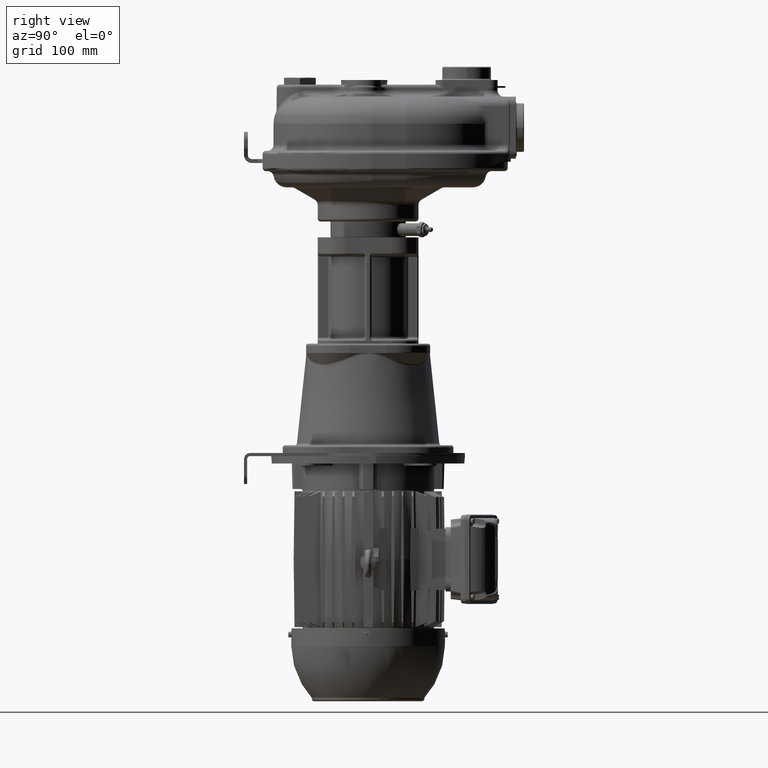
[diagram: clean part render]
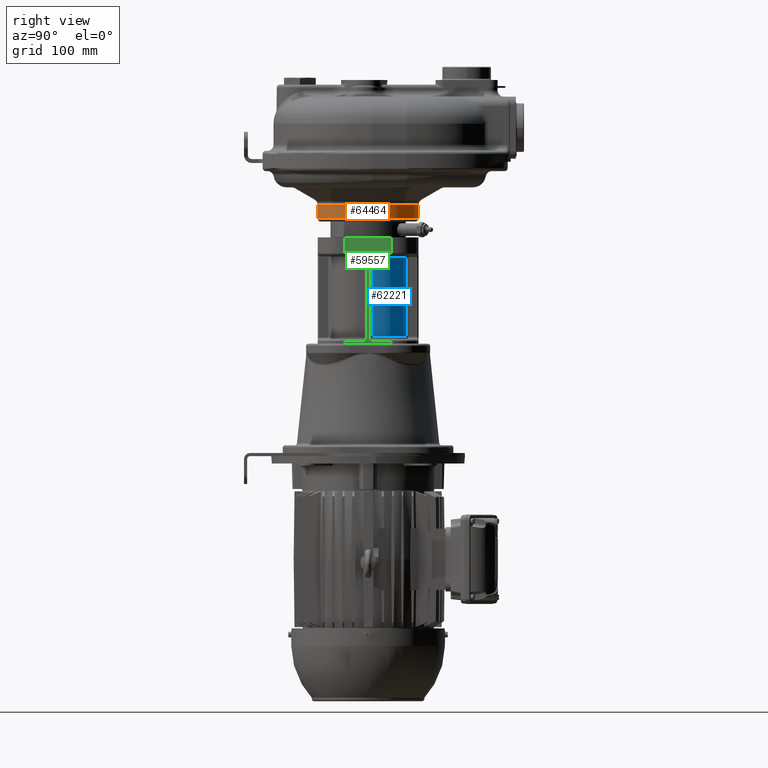
[diagram: same view with three faces highlighted in distinct colors, each labeled with its STEP entity id]
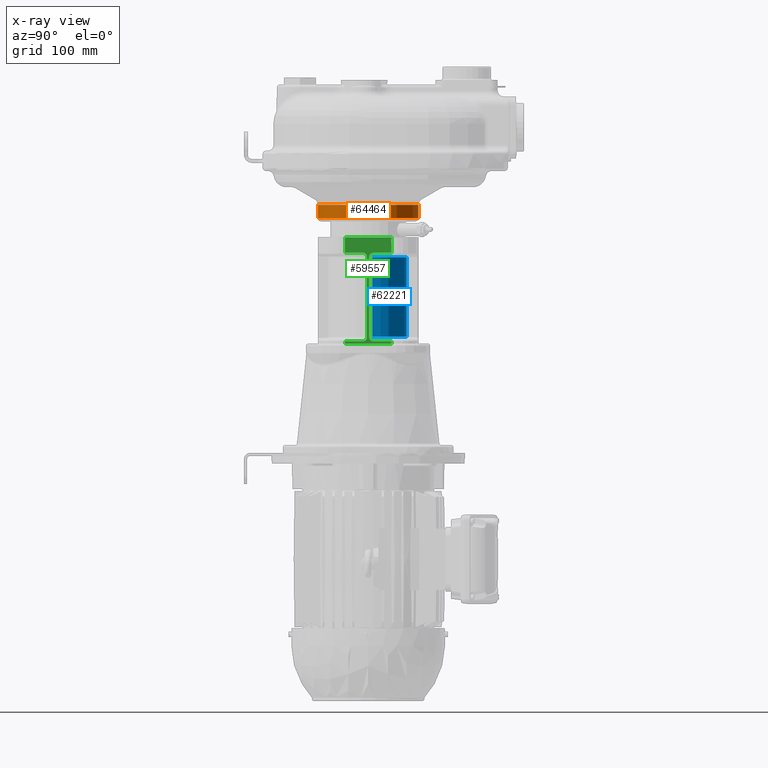
[diagram: x-ray of the same camera — body ghosted, the three highlighted faces saturated]
A machine part, right view with three faces highlighted in distinct colors.
The next image is the same camera in x-ray (body ghosted, the three faces saturated) — at least one of them is partly hidden behind the body in this view.
Their STEP definitions:

[orange] entity #64464 — the highlighted cylindrical surface (partial cylindrical patch) has radius 65 mm, axis along (0, 0, 1).
#9413=CARTESIAN_POINT('',(0.E0,0.E0,-7.8E1));
#9414=DIRECTION('',(0.E0,0.E0,1.E0));
#9415=DIRECTION('',(0.E0,-1.E0,0.E0));
#9416=AXIS2_PLACEMENT_3D('',#9413,#9414,#9415);
#9423=DIRECTION('',(0.E0,0.E0,1.E0));
#9424=VECTOR('',#9423,1.738119784648E1);
#9425=CARTESIAN_POINT('',(1.768811179956E-14,6.5E1,-7.8E1));
#9426=LINE('',#9425,#9424);
#9427=DIRECTION('',(0.E0,0.E0,1.E0));
#9428=VECTOR('',#9427,1.738119784648E1);
#9429=CARTESIAN_POINT('',(0.E0,-6.5E1,-7.8E1));
#9430=LINE('',#9429,#9428);
#9451=CARTESIAN_POINT('',(0.E0,0.E0,-6.061880215352E1));
#9452=DIRECTION('',(0.E0,0.E0,1.E0));
#9453=DIRECTION('',(0.E0,-1.E0,0.E0));
#9454=AXIS2_PLACEMENT_3D('',#9451,#9452,#9453);
#46886=CARTESIAN_POINT('',(0.E0,-6.5E1,-6.061880215352E1));
#46888=VERTEX_POINT('',#46886);
#46890=CARTESIAN_POINT('',(2.090559832256E-14,6.5E1,-6.061880215352E1));
#46892=VERTEX_POINT('',#46890);
#46906=CARTESIAN_POINT('',(0.E0,-6.5E1,-7.8E1));
#46907=CARTESIAN_POINT('',(0.E0,6.5E1,-7.8E1));
#46908=VERTEX_POINT('',#46906);
#46909=VERTEX_POINT('',#46907);
#64450=CARTESIAN_POINT('',(0.E0,0.E0,-8.42E1));
#64451=DIRECTION('',(0.E0,0.E0,1.E0));
#64452=DIRECTION('',(0.E0,-1.E0,0.E0));
#64453=AXIS2_PLACEMENT_3D('',#64450,#64451,#64452);
#64454=CYLINDRICAL_SURFACE('',#64453,6.5E1);
#64455=ORIENTED_EDGE('',*,*,#64440,.F.);
#64457=ORIENTED_EDGE('',*,*,#64456,.T.);
#64459=ORIENTED_EDGE('',*,*,#64458,.T.);
#64461=ORIENTED_EDGE('',*,*,#64460,.F.);
#64462=EDGE_LOOP('',(#64455,#64457,#64459,#64461));
#64463=FACE_OUTER_BOUND('',#64462,.F.);
#64464=ADVANCED_FACE('',(#64463),#64454,.T.);
#9417=CIRCLE('',#9416,6.5E1);
#9455=CIRCLE('',#9454,6.5E1);
#64440=EDGE_CURVE('',#46908,#46909,#9417,.T.);
#64456=EDGE_CURVE('',#46908,#46888,#9430,.T.);
#64458=EDGE_CURVE('',#46888,#46892,#9455,.T.);
#64460=EDGE_CURVE('',#46909,#46892,#9426,.T.);

[blue] entity #62221 — the highlighted cylindrical surface (partial cylindrical patch) has radius 50 mm, axis along (0, 0, -1).
#8114=CARTESIAN_POINT('',(4.971953514554E1,5.288461539031E0,-1.285E2));
#8159=CARTESIAN_POINT('',(0.E0,0.E0,-1.285E2));
#8160=DIRECTION('',(0.E0,0.E0,-1.E0));
#8161=DIRECTION('',(1.226415094340E-1,9.924510366581E-1,0.E0));
#8162=AXIS2_PLACEMENT_3D('',#8159,#8160,#8161);
#8179=DIRECTION('',(-3.501094838879E-12,-3.724689402223E-13,1.E0));
#8180=VECTOR('',#8179,1.02E2);
#8181=CARTESIAN_POINT('',(4.971953514590E1,5.288461539069E0,-2.305E2));
#8182=LINE('',#8181,#8180);
#8183=DIRECTION('',(0.E0,0.E0,-1.E0));
#8184=VECTOR('',#8183,1.02E2);
#8185=CARTESIAN_POINT('',(6.132075471698E0,4.962255183291E1,-1.285E2));
#8186=LINE('',#8185,#8184);
#8232=CARTESIAN_POINT('',(0.E0,0.E0,-2.305E2));
#8233=DIRECTION('',(0.E0,0.E0,1.E0));
#8234=DIRECTION('',(9.943907028037E-1,1.057692307692E-1,0.E0));
#8235=AXIS2_PLACEMENT_3D('',#8232,#8233,#8234);
#48232=CARTESIAN_POINT('',(6.132075471698E0,4.962255183291E1,-2.305E2));
#48233=VERTEX_POINT('',#48232);
#48234=CARTESIAN_POINT('',(6.132075471698E0,4.962255183291E1,-1.285E2));
#48235=VERTEX_POINT('',#48234);
#48346=VERTEX_POINT('',#8114);
#48347=CARTESIAN_POINT('',(4.971953514590E1,5.288461539069E0,-2.305E2));
#48348=VERTEX_POINT('',#48347);
#62208=CARTESIAN_POINT('',(0.E0,0.E0,-1.036E2));
#62209=DIRECTION('',(0.E0,0.E0,-1.E0));
#62210=DIRECTION('',(0.E0,-1.E0,0.E0));
#62211=AXIS2_PLACEMENT_3D('',#62208,#62209,#62210);
#62212=CYLINDRICAL_SURFACE('',#62211,5.E1);
#62214=ORIENTED_EDGE('',*,*,#62213,.T.);
#62215=ORIENTED_EDGE('',*,*,#62164,.F.);
#62216=ORIENTED_EDGE('',*,*,#62199,.T.);
#62218=ORIENTED_EDGE('',*,*,#62217,.F.);
#62219=EDGE_LOOP('',(#62214,#62215,#62216,#62218));
#62220=FACE_OUTER_BOUND('',#62219,.F.);
#62221=ADVANCED_FACE('',(#62220),#62212,.T.);
#8163=CIRCLE('',#8162,5.E1);
#8236=CIRCLE('',#8235,5.E1);
#62164=EDGE_CURVE('',#48235,#48346,#8163,.T.);
#62199=EDGE_CURVE('',#48235,#48233,#8186,.T.);
#62213=EDGE_CURVE('',#48348,#48346,#8182,.T.);
#62217=EDGE_CURVE('',#48348,#48233,#8236,.T.);

[green] entity #59557 — the highlighted planar face has unit normal (1, 0, 0).
#6499=DIRECTION('',(0.E0,1.196080271863E-13,1.E0));
#6500=VECTOR('',#6499,3.E0);
#6501=CARTESIAN_POINT('',(6.5E1,3.E1,-2.395E2));
#6502=LINE('',#6501,#6500);
#6512=DIRECTION('',(0.E0,-1.E0,0.E0));
#6513=VECTOR('',#6512,6.E1);
#6514=CARTESIAN_POINT('',(6.5E1,3.E1,-2.395E2));
#6515=LINE('',#6514,#6513);
#6516=CARTESIAN_POINT('',(6.5E1,-5.5E0,-2.365E2));
#6517=CARTESIAN_POINT('',(6.499999879763E1,-5.336805560509E0,
-2.364184029630E2));
#6518=CARTESIAN_POINT('',(6.500000055802E1,-5.027552507342E0,
-2.362635605490E2));
#6519=CARTESIAN_POINT('',(6.499999985048E1,-4.617105367300E0,
-2.360476054873E2));
#6520=CARTESIAN_POINT('',(6.500000004006E1,-4.266702171331E0,
-2.358486872385E2));
#6521=CARTESIAN_POINT('',(6.499999998926E1,-3.969322491434E0,
-2.356649641482E2));
#6522=CARTESIAN_POINT('',(6.500000000288E1,-3.708817428570E0,
-2.354894887153E2));
#6523=CARTESIAN_POINT('',(6.499999999923E1,-3.476219998711E0,
-2.353185362353E2));
#6524=CARTESIAN_POINT('',(6.500000000021E1,-3.265139857063E0,
-2.351493083936E2));
#6525=CARTESIAN_POINT('',(6.499999999994E1,-3.071463042430E0,
-2.349799020540E2));
#6526=CARTESIAN_POINT('',(6.500000000001E1,-2.892856158141E0,
-2.348093928988E2));
#6527=CARTESIAN_POINT('',(6.5E1,-2.727602757425E0,-2.346370776151E2));
#6528=CARTESIAN_POINT('',(6.5E1,-2.574579568059E0,-2.344625688304E2));
#6529=CARTESIAN_POINT('',(6.5E1,-2.432977041530E0,-2.342856279264E2));
#6530=CARTESIAN_POINT('',(6.5E1,-2.302226202680E0,-2.341061466985E2));
#6531=CARTESIAN_POINT('',(6.5E1,-2.181918905180E0,-2.339241050370E2));
#6532=CARTESIAN_POINT('',(6.5E1,-2.071764740315E0,-2.337395541909E2));
#6533=CARTESIAN_POINT('',(6.5E1,-1.971558422081E0,-2.335526029098E2));
#6534=CARTESIAN_POINT('',(6.5E1,-1.881155009793E0,-2.333634071027E2));
#6535=CARTESIAN_POINT('',(6.499999999999E1,-1.800453912395E0,
-2.331721628050E2));
#6536=CARTESIAN_POINT('',(6.500000000002E1,-1.729384472032E0,
-2.329790956255E2));
#6537=CARTESIAN_POINT('',(6.499999999991E1,-1.667898228375E0,
-2.327844614875E2));
#6538=CARTESIAN_POINT('',(6.500000000035E1,-1.615959578933E0,
-2.325885409749E2));
#6539=CARTESIAN_POINT('',(6.499999999870E1,-1.573536217876E0,
-2.323916179532E2));
#6540=CARTESIAN_POINT('',(6.500000000485E1,-1.540608038977E0,
-2.321940404786E2));
#6541=CARTESIAN_POINT('',(6.499999998192E1,-1.517138624615E0,
-2.319961192345E2));
#6542=CARTESIAN_POINT('',(6.500000006749E1,-1.503101046618E0,
-2.317981894123E2));
#6543=CARTESIAN_POINT('',(6.499999985458E1,-1.500000199027E0,
-2.316666930386E2));
#6544=CARTESIAN_POINT('',(6.499999997601E1,-1.5E0,-2.316010205144E2));
#6546=DIRECTION('',(-1.395132199097E-11,0.E0,1.E0));
#6547=VECTOR('',#6546,1.042020410289E2);
#6548=CARTESIAN_POINT('',(6.499999997601E1,-1.5E0,-2.316010205144E2));
#6549=LINE('',#6548,#6547);
#6550=CARTESIAN_POINT('',(6.499999997456E1,-1.5E0,-1.273989794856E2));
#6551=CARTESIAN_POINT('',(6.499999985098E1,-1.500000201068E0,
-1.273333104575E2));
#6552=CARTESIAN_POINT('',(6.500000006916E1,-1.503100702152E0,
-1.272018210358E2));
#6553=CARTESIAN_POINT('',(6.499999998147E1,-1.517136870676E0,
-1.270039009725E2));
#6554=CARTESIAN_POINT('',(6.500000000497E1,-1.540603809943E0,
-1.268059904612E2));
#6555=CARTESIAN_POINT('',(6.499999999867E1,-1.573528313065E0,
-1.266084244303E2));
#6556=CARTESIAN_POINT('',(6.500000000036E1,-1.615946979233E0,
-1.264115122769E2));
#6557=CARTESIAN_POINT('',(6.499999999990E1,-1.667879824851E0,
-1.262156025433E2));
#6558=CARTESIAN_POINT('',(6.500000000003E1,-1.729359174554E0,
-1.260209789405E2));
#6559=CARTESIAN_POINT('',(6.499999999999E1,-1.800420624400E0,
-1.258279220112E2));
#6560=CARTESIAN_POINT('',(6.5E1,-1.881112614904E0,-1.256366876494E2));
#6561=CARTESIAN_POINT('',(6.5E1,-1.971505775119E0,-1.254475014436E2));
#6562=CARTESIAN_POINT('',(6.5E1,-2.071700655829E0,-1.252605594036E2));
#6563=CARTESIAN_POINT('',(6.5E1,-2.181842156007E0,-1.250760174476E2));
#6564=CARTESIAN_POINT('',(6.5E1,-2.302135480247E0,-1.248939843391E2));
#6565=CARTESIAN_POINT('',(6.5E1,-2.432870916963E0,-1.247145113590E2));
#6566=CARTESIAN_POINT('',(6.5E1,-2.574456425764E0,-1.245375784633E2));
#6567=CARTESIAN_POINT('',(6.5E1,-2.727460779569E0,-1.243630775109E2));
#6568=CARTESIAN_POINT('',(6.500000000001E1,-2.892692906448E0,
-1.241907702658E2));
#6569=CARTESIAN_POINT('',(6.499999999994E1,-3.071276422740E0,
-1.240202688227E2));
#6570=CARTESIAN_POINT('',(6.500000000021E1,-3.264924120421E0,
-1.238508725847E2));
#6571=CARTESIAN_POINT('',(6.499999999923E1,-3.475974848492E0,
-1.236816522168E2));
#6572=CARTESIAN_POINT('',(6.500000000287E1,-3.708526847896E0,
-1.235107166003E2));
#6573=CARTESIAN_POINT('',(6.499999998930E1,-3.968970193382E0,
-1.233352625418E2));
#6574=CARTESIAN_POINT('',(6.500000003994E1,-4.266401254252E0,
-1.231514887932E2));
#6575=CARTESIAN_POINT('',(6.499999985094E1,-4.616888401944E0,
-1.229525111690E2));
#6576=CARTESIAN_POINT('',(6.500000055629E1,-5.027432727010E0,
-1.227364995299E2));
#6577=CARTESIAN_POINT('',(6.499999880136E1,-5.336763992315E0,
-1.225816178212E2));
#6578=CARTESIAN_POINT('',(6.5E1,-5.5E0,-1.225E2));
#6580=DIRECTION('',(0.E0,0.E0,1.E0));
#6581=VECTOR('',#6580,2.E1);
#6582=CARTESIAN_POINT('',(6.5E1,-3.E1,-1.225E2));
#6583=LINE('',#6582,#6581);
#6584=DIRECTION('',(0.E0,-1.E0,0.E0));
#6585=VECTOR('',#6584,6.E1);
#6586=CARTESIAN_POINT('',(6.5E1,3.E1,-1.025E2));
#6587=LINE('',#6586,#6585);
#6588=DIRECTION('',(0.E0,0.E0,-1.E0));
#6589=VECTOR('',#6588,2.E1);
#6590=CARTESIAN_POINT('',(6.5E1,3.E1,-1.025E2));
#6591=LINE('',#6590,#6589);
#6592=CARTESIAN_POINT('',(6.5E1,5.5E0,-1.225E2));
#6593=CARTESIAN_POINT('',(6.499999879763E1,5.336805560508E0,-1.225815970370E2));
#6594=CARTESIAN_POINT('',(6.500000055802E1,5.027552507340E0,-1.227364394510E2));
#6595=CARTESIAN_POINT('',(6.499999985048E1,4.617105367297E0,-1.229523945127E2));
#6596=CARTESIAN_POINT('',(6.500000004006E1,4.266702171328E0,-1.231513127615E2));
#6597=CARTESIAN_POINT('',(6.499999998926E1,3.969322491431E0,-1.233350358518E2));
#6598=CARTESIAN_POINT('',(6.500000000288E1,3.708817428568E0,-1.235105112847E2));
#6599=CARTESIAN_POINT('',(6.499999999923E1,3.476219998709E0,-1.236814637647E2));
#6600=CARTESIAN_POINT('',(6.500000000021E1,3.265139857061E0,-1.238506916064E2));
#6601=CARTESIAN_POINT('',(6.499999999994E1,3.071463042429E0,-1.240200979460E2));
#6602=CARTESIAN_POINT('',(6.500000000001E1,2.892856158139E0,-1.241906071012E2));
#6603=CARTESIAN_POINT('',(6.5E1,2.727602757423E0,-1.243629223849E2));
#6604=CARTESIAN_POINT('',(6.5E1,2.574579568057E0,-1.245374311696E2));
#6605=CARTESIAN_POINT('',(6.5E1,2.432977041529E0,-1.247143720736E2));
#6606=CARTESIAN_POINT('',(6.5E1,2.302226202679E0,-1.248938533015E2));
#6607=CARTESIAN_POINT('',(6.5E1,2.181918905179E0,-1.250758949630E2));
#6608=CARTESIAN_POINT('',(6.5E1,2.071764740314E0,-1.252604458091E2));
#6609=CARTESIAN_POINT('',(6.5E1,1.971558422080E0,-1.254473970902E2));
#6610=CARTESIAN_POINT('',(6.5E1,1.881155009793E0,-1.256365928973E2));
#6611=CARTESIAN_POINT('',(6.499999999999E1,1.800453912395E0,-1.258278371950E2));
#6612=CARTESIAN_POINT('',(6.500000000002E1,1.729384472032E0,-1.260209043745E2));
#6613=CARTESIAN_POINT('',(6.499999999991E1,1.667898228375E0,-1.262155385125E2));
#6614=CARTESIAN_POINT('',(6.500000000035E1,1.615959578933E0,-1.264114590251E2));
#6615=CARTESIAN_POINT('',(6.499999999870E1,1.573536217876E0,-1.266083820468E2));
#6616=CARTESIAN_POINT('',(6.500000000485E1,1.540608038977E0,-1.268059595214E2));
#6617=CARTESIAN_POINT('',(6.499999998192E1,1.517138624615E0,-1.270038807655E2));
#6618=CARTESIAN_POINT('',(6.500000006749E1,1.503101046618E0,-1.272018105877E2));
#6619=CARTESIAN_POINT('',(6.499999985458E1,1.500000199027E0,-1.273333069614E2));
#6620=CARTESIAN_POINT('',(6.499999997601E1,1.5E0,-1.273989794856E2));
#6622=DIRECTION('',(-1.395132199097E-11,0.E0,-1.E0));
#6623=VECTOR('',#6622,1.042020410289E2);
#6624=CARTESIAN_POINT('',(6.499999997601E1,1.5E0,-1.273989794856E2));
#6625=LINE('',#6624,#6623);
#6626=CARTESIAN_POINT('',(6.499999997456E1,1.5E0,-2.316010205144E2));
#6627=CARTESIAN_POINT('',(6.499999985098E1,1.500000201068E0,-2.316666895425E2));
#6628=CARTESIAN_POINT('',(6.500000006916E1,1.503100702152E0,-2.317981789642E2));
#6629=CARTESIAN_POINT('',(6.499999998147E1,1.517136870676E0,-2.319960990275E2));
#6630=CARTESIAN_POINT('',(6.500000000497E1,1.540603809944E0,-2.321940095388E2));
#6631=CARTESIAN_POINT('',(6.499999999867E1,1.573528313065E0,-2.323915755697E2));
#6632=CARTESIAN_POINT('',(6.500000000036E1,1.615946979234E0,-2.325884877231E2));
#6633=CARTESIAN_POINT('',(6.499999999990E1,1.667879824851E0,-2.327843974567E2));
#6634=CARTESIAN_POINT('',(6.500000000003E1,1.729359174555E0,-2.329790210595E2));
#6635=CARTESIAN_POINT('',(6.499999999999E1,1.800420624401E0,-2.331720779888E2));
#6636=CARTESIAN_POINT('',(6.5E1,1.881112614906E0,-2.333633123506E2));
#6637=CARTESIAN_POINT('',(6.5E1,1.971505775121E0,-2.335524985564E2));
#6638=CARTESIAN_POINT('',(6.5E1,2.071700655832E0,-2.337394405964E2));
#6639=CARTESIAN_POINT('',(6.5E1,2.181842156009E0,-2.339239825524E2));
#6640=CARTESIAN_POINT('',(6.5E1,2.302135480250E0,-2.341060156609E2));
#6641=CARTESIAN_POINT('',(6.5E1,2.432870916967E0,-2.342854886411E2));
#6642=CARTESIAN_POINT('',(6.5E1,2.574456425768E0,-2.344624215367E2));
#6643=CARTESIAN_POINT('',(6.5E1,2.727460779574E0,-2.346369224891E2));
#6644=CARTESIAN_POINT('',(6.500000000001E1,2.892692906454E0,-2.348092297342E2));
#6645=CARTESIAN_POINT('',(6.499999999994E1,3.071276422746E0,-2.349797311773E2));
#6646=CARTESIAN_POINT('',(6.500000000021E1,3.264924120427E0,-2.351491274153E2));
#6647=CARTESIAN_POINT('',(6.499999999923E1,3.475974848501E0,-2.353183477832E2));
#6648=CARTESIAN_POINT('',(6.500000000287E1,3.708526847906E0,-2.354892833997E2));
#6649=CARTESIAN_POINT('',(6.499999998930E1,3.968970193391E0,-2.356647374582E2));
#6650=CARTESIAN_POINT('',(6.500000003994E1,4.266401254260E0,-2.358485112068E2));
#6651=CARTESIAN_POINT('',(6.499999985094E1,4.616888401950E0,-2.360474888310E2));
#6652=CARTESIAN_POINT('',(6.500000055629E1,5.027432727016E0,-2.362635004701E2));
#6653=CARTESIAN_POINT('',(6.499999880136E1,5.336763992318E0,-2.364183821788E2));
#6654=CARTESIAN_POINT('',(6.5E1,5.5E0,-2.365E2));
#6670=DIRECTION('',(0.E0,-1.219765029722E-13,1.E0));
#6671=VECTOR('',#6670,3.E0);
#6672=CARTESIAN_POINT('',(6.5E1,-3.E1,-2.395E2));
#6673=LINE('',#6672,#6671);
#7896=DIRECTION('',(0.E0,-1.E0,0.E0));
#7897=VECTOR('',#7896,2.45E1);
#7898=CARTESIAN_POINT('',(6.5E1,3.E1,-2.365E2));
#7899=LINE('',#7898,#7897);
#8074=DIRECTION('',(0.E0,1.E0,0.E0));
#8075=VECTOR('',#8074,2.45E1);
#8076=CARTESIAN_POINT('',(6.5E1,5.5E0,-1.225E2));
#8077=LINE('',#8076,#8075);
#8471=DIRECTION('',(0.E0,1.E0,0.E0));
#8472=VECTOR('',#8471,2.45E1);
#8473=CARTESIAN_POINT('',(6.5E1,-3.E1,-1.225E2));
#8474=LINE('',#8473,#8472);
#8649=DIRECTION('',(0.E0,-1.E0,0.E0));
#8650=VECTOR('',#8649,2.45E1);
#8651=CARTESIAN_POINT('',(6.5E1,-5.5E0,-2.365E2));
#8652=LINE('',#8651,#8650);
#47936=CARTESIAN_POINT('',(6.5E1,3.E1,-1.025E2));
#47937=CARTESIAN_POINT('',(6.5E1,-3.E1,-1.025E2));
#47938=VERTEX_POINT('',#47936);
#47939=VERTEX_POINT('',#47937);
#48200=CARTESIAN_POINT('',(6.5E1,3.E1,-2.365E2));
#48201=VERTEX_POINT('',#48200);
#48202=CARTESIAN_POINT('',(6.5E1,3.E1,-1.225E2));
#48203=VERTEX_POINT('',#48202);
#48204=CARTESIAN_POINT('',(6.5E1,-3.E1,-2.365E2));
#48205=VERTEX_POINT('',#48204);
#48206=CARTESIAN_POINT('',(6.5E1,-3.E1,-1.225E2));
#48207=VERTEX_POINT('',#48206);
#48430=CARTESIAN_POINT('',(6.5E1,-5.5E0,-2.365E2));
#48431=VERTEX_POINT('',#48430);
#48434=CARTESIAN_POINT('',(6.5E1,-5.5E0,-1.225E2));
#48435=VERTEX_POINT('',#48434);
#48436=CARTESIAN_POINT('',(6.5E1,5.5E0,-1.225E2));
#48437=VERTEX_POINT('',#48436);
#48440=CARTESIAN_POINT('',(6.5E1,5.5E0,-2.365E2));
#48441=VERTEX_POINT('',#48440);
#48464=VERTEX_POINT('',#6550);
#48465=CARTESIAN_POINT('',(6.499999997601E1,-1.5E0,-2.316010205144E2));
#48466=VERTEX_POINT('',#48465);
#48467=VERTEX_POINT('',#6626);
#48468=CARTESIAN_POINT('',(6.499999997601E1,1.5E0,-1.273989794856E2));
#48469=VERTEX_POINT('',#48468);
#48746=CARTESIAN_POINT('',(6.5E1,3.E1,-2.395E2));
#48747=CARTESIAN_POINT('',(6.5E1,-3.E1,-2.395E2));
#48748=VERTEX_POINT('',#48746);
#48749=VERTEX_POINT('',#48747);
#59520=CARTESIAN_POINT('',(6.5E1,3.E1,-1.015E2));
#59521=DIRECTION('',(1.E0,0.E0,0.E0));
#59522=DIRECTION('',(0.E0,-1.E0,0.E0));
#59523=AXIS2_PLACEMENT_3D('',#59520,#59521,#59522);
#59524=PLANE('',#59523);
#59525=ORIENTED_EDGE('',*,*,#59404,.T.);
#59527=ORIENTED_EDGE('',*,*,#59526,.T.);
#59529=ORIENTED_EDGE('',*,*,#59528,.F.);
#59531=ORIENTED_EDGE('',*,*,#59530,.T.);
#59533=ORIENTED_EDGE('',*,*,#59532,.T.);
#59535=ORIENTED_EDGE('',*,*,#59534,.T.);
#59537=ORIENTED_EDGE('',*,*,#59536,.F.);
#59539=ORIENTED_EDGE('',*,*,#59538,.T.);
#59541=ORIENTED_EDGE('',*,*,#59540,.F.);
#59543=ORIENTED_EDGE('',*,*,#59542,.T.);
#59545=ORIENTED_EDGE('',*,*,#59544,.F.);
#59547=ORIENTED_EDGE('',*,*,#59546,.T.);
#59549=ORIENTED_EDGE('',*,*,#59548,.T.);
#59551=ORIENTED_EDGE('',*,*,#59550,.T.);
#59553=ORIENTED_EDGE('',*,*,#59552,.F.);
#59554=ORIENTED_EDGE('',*,*,#59512,.F.);
#59555=EDGE_LOOP('',(#59525,#59527,#59529,#59531,#59533,#59535,#59537,#59539,
#59541,#59543,#59545,#59547,#59549,#59551,#59553,#59554));
#59556=FACE_OUTER_BOUND('',#59555,.F.);
#59557=ADVANCED_FACE('',(#59556),#59524,.T.);
#6545=B_SPLINE_CURVE_WITH_KNOTS('',3,(#6516,#6517,#6518,#6519,#6520,#6521,#6522,
#6523,#6524,#6525,#6526,#6527,#6528,#6529,#6530,#6531,#6532,#6533,#6534,#6535,
#6536,#6537,#6538,#6539,#6540,#6541,#6542,#6543,#6544),.UNSPECIFIED.,.F.,.F.,(4,
1,1,1,1,1,1,1,1,1,1,1,1,1,1,1,1,1,1,1,1,1,1,1,1,1,4),(0.E0,3.846153846154E-2,
7.692307692308E-2,1.153846153846E-1,1.538461538462E-1,1.923076923077E-1,
2.307692307692E-1,2.692307692308E-1,3.076923076923E-1,3.461538461538E-1,
3.846153846154E-1,4.230769230769E-1,4.615384615385E-1,5.E-1,5.384615384615E-1,
5.769230769231E-1,6.153846153846E-1,6.538461538462E-1,6.923076923077E-1,
7.307692307692E-1,7.692307692308E-1,8.076923076923E-1,8.461538461538E-1,
8.846153846154E-1,9.230769230769E-1,9.615384615385E-1,1.E0),.UNSPECIFIED.);
#6579=B_SPLINE_CURVE_WITH_KNOTS('',3,(#6550,#6551,#6552,#6553,#6554,#6555,#6556,
#6557,#6558,#6559,#6560,#6561,#6562,#6563,#6564,#6565,#6566,#6567,#6568,#6569,
#6570,#6571,#6572,#6573,#6574,#6575,#6576,#6577,#6578),.UNSPECIFIED.,.F.,.F.,(4,
1,1,1,1,1,1,1,1,1,1,1,1,1,1,1,1,1,1,1,1,1,1,1,1,1,4),(0.E0,3.846153846154E-2,
7.692307692308E-2,1.153846153846E-1,1.538461538462E-1,1.923076923077E-1,
2.307692307692E-1,2.692307692308E-1,3.076923076923E-1,3.461538461538E-1,
3.846153846154E-1,4.230769230769E-1,4.615384615385E-1,5.E-1,5.384615384615E-1,
5.769230769231E-1,6.153846153846E-1,6.538461538462E-1,6.923076923077E-1,
7.307692307692E-1,7.692307692308E-1,8.076923076923E-1,8.461538461538E-1,
8.846153846154E-1,9.230769230769E-1,9.615384615385E-1,1.E0),.UNSPECIFIED.);
#6621=B_SPLINE_CURVE_WITH_KNOTS('',3,(#6592,#6593,#6594,#6595,#6596,#6597,#6598,
#6599,#6600,#6601,#6602,#6603,#6604,#6605,#6606,#6607,#6608,#6609,#6610,#6611,
#6612,#6613,#6614,#6615,#6616,#6617,#6618,#6619,#6620),.UNSPECIFIED.,.F.,.F.,(4,
1,1,1,1,1,1,1,1,1,1,1,1,1,1,1,1,1,1,1,1,1,1,1,1,1,4),(0.E0,3.846153846154E-2,
7.692307692308E-2,1.153846153846E-1,1.538461538462E-1,1.923076923077E-1,
2.307692307692E-1,2.692307692308E-1,3.076923076923E-1,3.461538461538E-1,
3.846153846154E-1,4.230769230769E-1,4.615384615385E-1,5.E-1,5.384615384615E-1,
5.769230769231E-1,6.153846153846E-1,6.538461538462E-1,6.923076923077E-1,
7.307692307692E-1,7.692307692308E-1,8.076923076923E-1,8.461538461538E-1,
8.846153846154E-1,9.230769230769E-1,9.615384615385E-1,1.E0),.UNSPECIFIED.);
#6655=B_SPLINE_CURVE_WITH_KNOTS('',3,(#6626,#6627,#6628,#6629,#6630,#6631,#6632,
#6633,#6634,#6635,#6636,#6637,#6638,#6639,#6640,#6641,#6642,#6643,#6644,#6645,
#6646,#6647,#6648,#6649,#6650,#6651,#6652,#6653,#6654),.UNSPECIFIED.,.F.,.F.,(4,
1,1,1,1,1,1,1,1,1,1,1,1,1,1,1,1,1,1,1,1,1,1,1,1,1,4),(0.E0,3.846153846154E-2,
7.692307692308E-2,1.153846153846E-1,1.538461538462E-1,1.923076923077E-1,
2.307692307692E-1,2.692307692308E-1,3.076923076923E-1,3.461538461538E-1,
3.846153846154E-1,4.230769230769E-1,4.615384615385E-1,5.E-1,5.384615384615E-1,
5.769230769231E-1,6.153846153846E-1,6.538461538462E-1,6.923076923077E-1,
7.307692307692E-1,7.692307692308E-1,8.076923076923E-1,8.461538461538E-1,
8.846153846154E-1,9.230769230769E-1,9.615384615385E-1,1.E0),.UNSPECIFIED.);
#59404=EDGE_CURVE('',#48748,#48749,#6515,.T.);
#59512=EDGE_CURVE('',#48748,#48201,#6502,.T.);
#59526=EDGE_CURVE('',#48749,#48205,#6673,.T.);
#59528=EDGE_CURVE('',#48431,#48205,#8652,.T.);
#59530=EDGE_CURVE('',#48431,#48466,#6545,.T.);
#59532=EDGE_CURVE('',#48466,#48464,#6549,.T.);
#59534=EDGE_CURVE('',#48464,#48435,#6579,.T.);
#59536=EDGE_CURVE('',#48207,#48435,#8474,.T.);
#59538=EDGE_CURVE('',#48207,#47939,#6583,.T.);
#59540=EDGE_CURVE('',#47938,#47939,#6587,.T.);
#59542=EDGE_CURVE('',#47938,#48203,#6591,.T.);
#59544=EDGE_CURVE('',#48437,#48203,#8077,.T.);
#59546=EDGE_CURVE('',#48437,#48469,#6621,.T.);
#59548=EDGE_CURVE('',#48469,#48467,#6625,.T.);
#59550=EDGE_CURVE('',#48467,#48441,#6655,.T.);
#59552=EDGE_CURVE('',#48201,#48441,#7899,.T.);